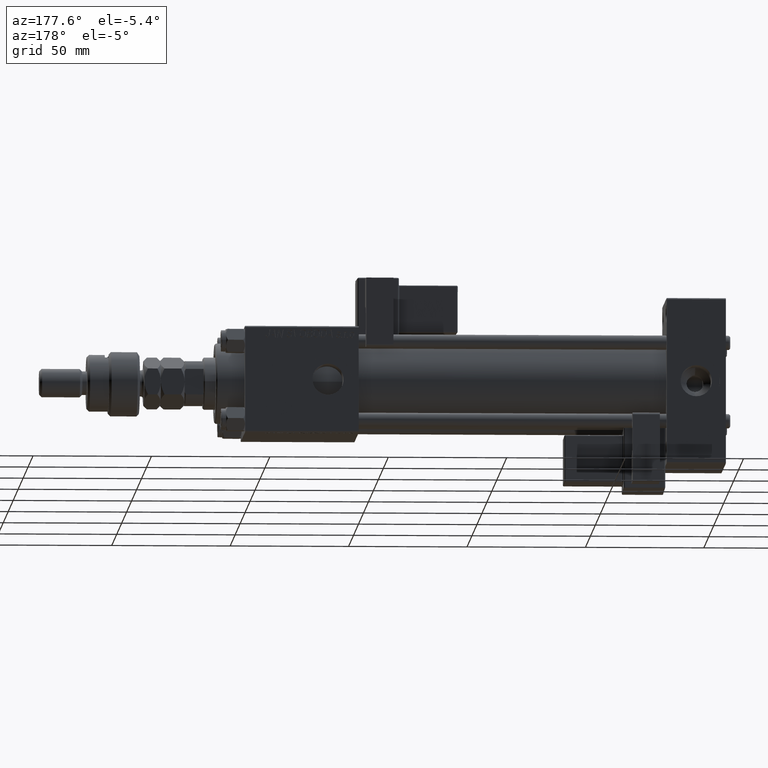
[diagram: clean part render]
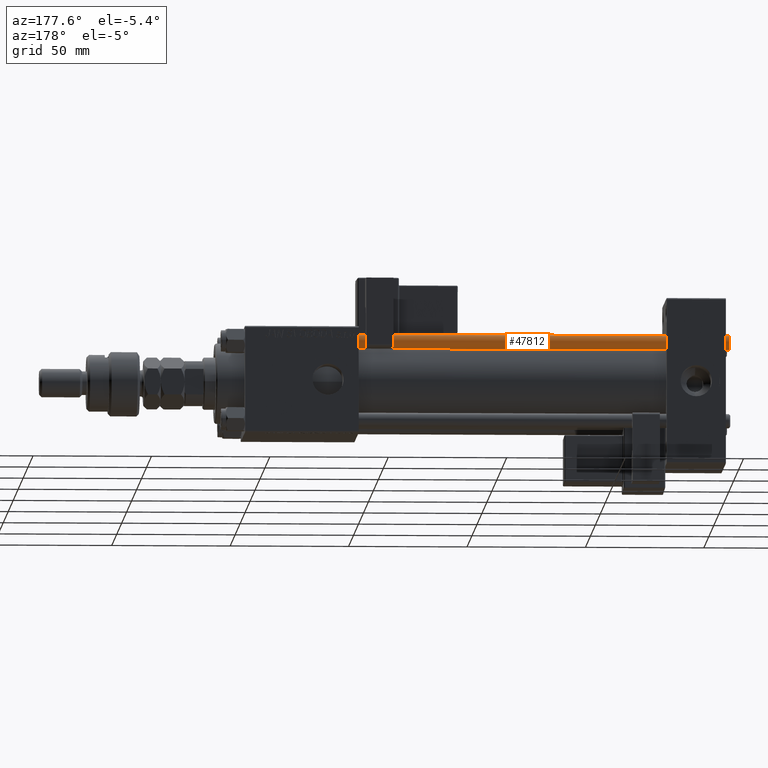
[diagram: same view with one face highlighted and labeled with its STEP entity id]
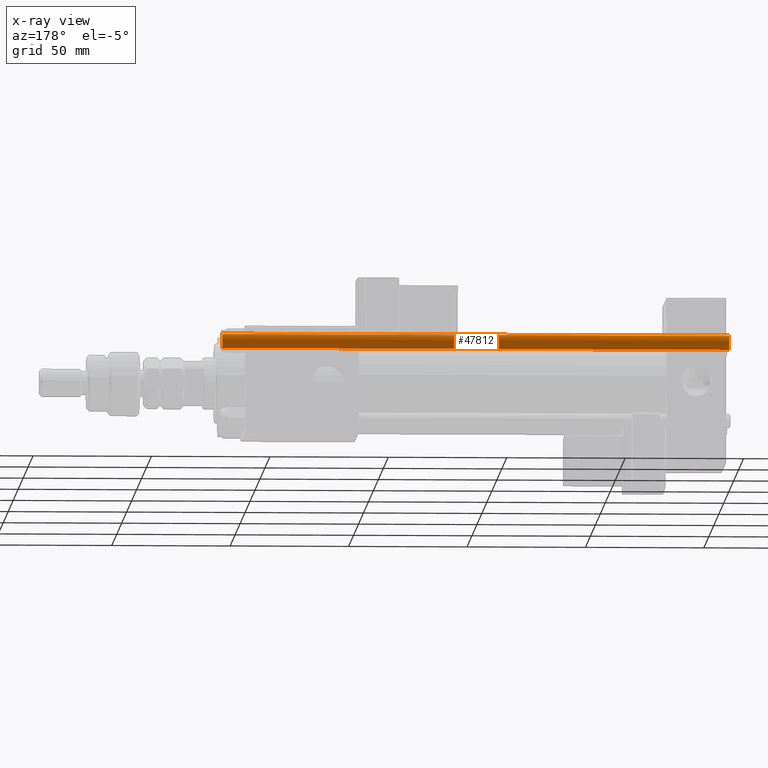
[diagram: x-ray of the same camera — body ghosted, the highlighted face saturated]
A machine part, auxiliary view. The second image highlights one B-rep face of the part: STEP entity #47812.
The next image is the same camera in x-ray: the body ghosted, the highlighted face saturated — about 0% of this face is hidden behind the body in this view.
In plain terms, the highlighted cylindrical surface (edge-blend (fillet) strip) has radius 3 mm, axis along (1, 0, 0).
Its self-contained STEP definition (entity closure, byte-faithful):
#3452 = AXIS2_PLACEMENT_3D ( 'NONE', #49289, #45110, #36454 ) ;
#6859 = AXIS2_PLACEMENT_3D ( 'NONE', #29777, #16126, #20601 ) ;
#7726 = CARTESIAN_POINT ( 'NONE',  ( -3.000000000000000444, 0.000000000000000000, 0.5000000000000559552 ) ) ;
#9631 = CYLINDRICAL_SURFACE ( 'NONE', #15048, 3.000000000000000444 ) ;
#11447 = EDGE_CURVE ( 'NONE', #43295, #33345, #31755, .T. ) ;
#11455 = LINE ( 'NONE', #12292, #53742 ) ;
#12292 = CARTESIAN_POINT ( 'NONE',  ( 3.000000000000000444, 3.673940397442060361E-16, 215.0000000000000000 ) ) ;
#12540 = CARTESIAN_POINT ( 'NONE',  ( -3.000000000000000444, 0.000000000000000000, 215.0000000000000000 ) ) ;
#15048 = AXIS2_PLACEMENT_3D ( 'NONE', #38016, #34124, #55028 ) ;
#16126 = DIRECTION ( 'NONE',  ( 0.000000000000000000, 0.000000000000000000, -1.000000000000000000 ) ) ;
#16797 = VERTEX_POINT ( 'NONE', #44982 ) ;
#16935 = EDGE_CURVE ( 'NONE', #51181, #16797, #50590, .T. ) ;
#19298 = ORIENTED_EDGE ( 'NONE', *, *, #16935, .T. ) ;
#20020 = VECTOR ( 'NONE', #20048, 1000.000000000000000 ) ;
#20048 = DIRECTION ( 'NONE',  ( -0.000000000000000000, -0.000000000000000000, -1.000000000000000000 ) ) ;
#20601 = DIRECTION ( 'NONE',  ( 1.000000000000000000, 0.000000000000000000, 0.000000000000000000 ) ) ;
#21001 = CARTESIAN_POINT ( 'NONE',  ( -3.000000000000000444, 0.000000000000000000, 214.5000000000000000 ) ) ;
#21122 = ORIENTED_EDGE ( 'NONE', *, *, #11447, .T. ) ;
#23344 = ORIENTED_EDGE ( 'NONE', *, *, #25722, .F. ) ;
#25722 = EDGE_CURVE ( 'NONE', #43295, #16797, #11455, .T. ) ;
#26774 = CARTESIAN_POINT ( 'NONE',  ( 3.000000000000000444, 3.673940397442060361E-16, 214.5000000000000000 ) ) ;
#28060 = EDGE_CURVE ( 'NONE', #33345, #51181, #46490, .T. ) ;
#28701 = DIRECTION ( 'NONE',  ( -0.000000000000000000, -0.000000000000000000, -1.000000000000000000 ) ) ;
#29777 = CARTESIAN_POINT ( 'NONE',  ( 0.000000000000000000, 0.000000000000000000, 214.5000000000000000 ) ) ;
#30229 = EDGE_LOOP ( 'NONE', ( #23344, #21122, #53296, #19298 ) ) ;
#31755 = CIRCLE ( 'NONE', #6859, 3.000000000000000444 ) ;
#33345 = VERTEX_POINT ( 'NONE', #21001 ) ;
#34124 = DIRECTION ( 'NONE',  ( -0.000000000000000000, -0.000000000000000000, -1.000000000000000000 ) ) ;
#36454 = DIRECTION ( 'NONE',  ( 1.000000000000000000, 0.000000000000000000, 0.000000000000000000 ) ) ;
#38016 = CARTESIAN_POINT ( 'NONE',  ( 0.000000000000000000, 0.000000000000000000, 215.0000000000000000 ) ) ;
#43295 = VERTEX_POINT ( 'NONE', #26774 ) ;
#44982 = CARTESIAN_POINT ( 'NONE',  ( 3.000000000000000444, 3.673940397442060361E-16, 0.5000000000000559552 ) ) ;
#45110 = DIRECTION ( 'NONE',  ( -0.000000000000000000, -0.000000000000000000, 1.000000000000000000 ) ) ;
#46490 = LINE ( 'NONE', #12540, #20020 ) ;
#47762 = FACE_OUTER_BOUND ( 'NONE', #30229, .T. ) ;
#47812 = ADVANCED_FACE ( 'NONE', ( #47762 ), #9631, .T. ) ;
#49289 = CARTESIAN_POINT ( 'NONE',  ( 0.000000000000000000, 0.000000000000000000, 0.5000000000000559552 ) ) ;
#50590 = CIRCLE ( 'NONE', #3452, 3.000000000000000444 ) ;
#51181 = VERTEX_POINT ( 'NONE', #7726 ) ;
#53296 = ORIENTED_EDGE ( 'NONE', *, *, #28060, .T. ) ;
#53742 = VECTOR ( 'NONE', #28701, 1000.000000000000000 ) ;
#55028 = DIRECTION ( 'NONE',  ( -1.000000000000000000, 0.000000000000000000, 0.000000000000000000 ) ) ;